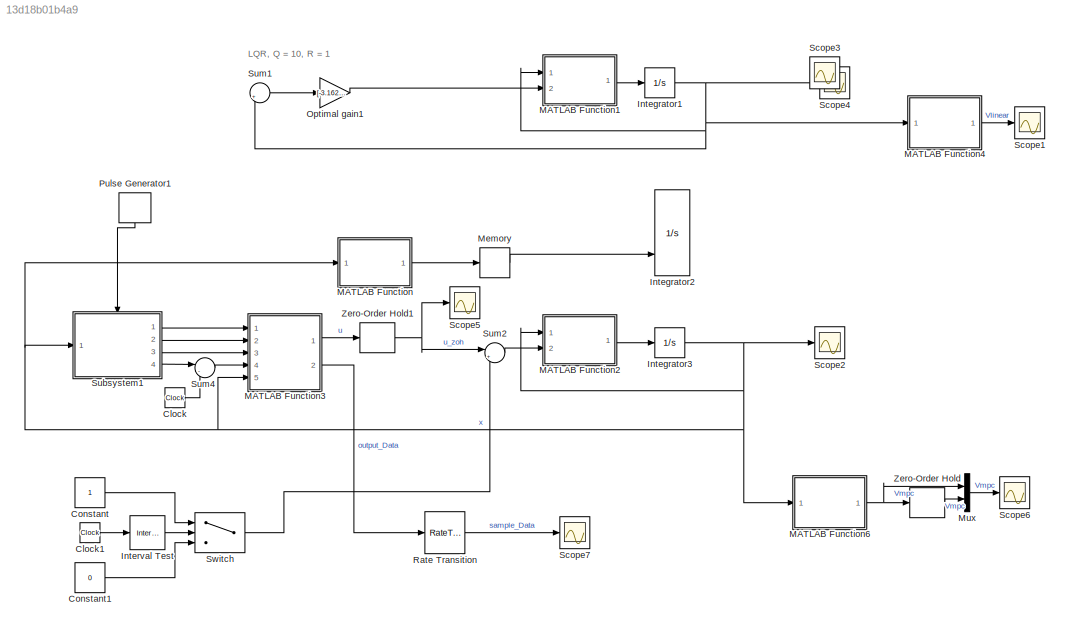
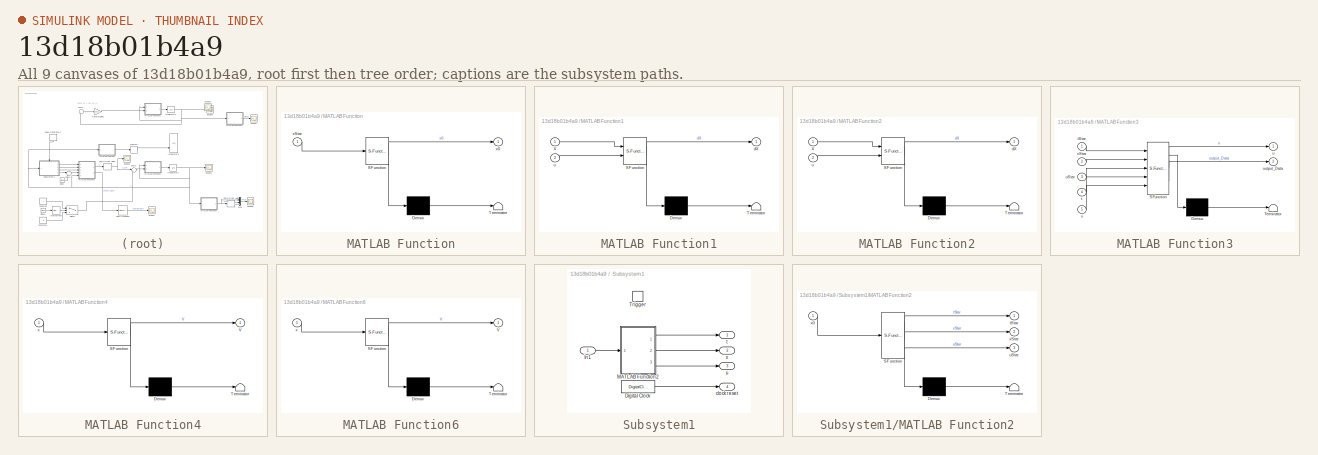
[diagram: thumbnail index - all 9 canvases of the model, root first then tree order]
MODEL slx_13d18b01b4a9
KIND model
CONFIG AbsTol = auto
CONFIG EnableMultiTasking = on
CONFIG FixedStep = auto
CONFIG MaxStep = 1e-3
CONFIG MinStep = auto
CONFIG RelTol = 1e-3
CONFIG SampleTimeConstraint = Unconstrained
CONFIG Solver = ode45
CONFIG SolverName = ode45
CONFIG StartTime = 0.0
CONFIG StopTime = 20
BLOCK [Clock] Clock
BLOCK [Clock] Clock1
BLOCK [Constant] Constant
BLOCK [Constant] Constant1
  Value = 0
BLOCK [Integrator] Integrator1
  InitialCondition = x0
  Ports = [1, 1]
BLOCK [Integrator] Integrator2
  ExternalReset = rising
  InitialCondition = x0
  InitialConditionSource = external
  Ports = [3, 1]
BLOCK [Integrator] Integrator3
  InitialCondition = x0
  Ports = [1, 1]
BLOCK [Reference] Interval Test  REF=simulink/Logic and Bit
Operations/Interval Test
  Ports = [1, 1]
  SourceBlock = simulink/Logic and Bit\nOperations/Interval Test
  SourceProductBaseCode = SL
  SourceProductName = Simulink
  SourceType = Interval Test
BLOCK [SubSystem] MATLAB Function
  ErrorFcn = Stateflow.Translate.translate
  PermitHierarchicalResolution = ExplicitOnly
  Ports = [1, 1]
  RequestExecContextInheritance = off
  SFBlockType = MATLAB Function
  TreatAsAtomicUnit = on
  Variant = off
BLOCK [Demux] MATLAB Function/ Demux 
  Outputs = 1
  Ports = [1, 1]
BLOCK [S-Function] MATLAB Function/ SFunction 
  EnableBusSupport = off
  FunctionName = sf_sfun
  PortCounts = [1 2]
  Ports = [1, 2]
  SFcnIsStateOwnerBlock = off
  SFunctionDeploymentMode = off
  Tag = Stateflow S-Function nonlinearSim 6
BLOCK [Terminator] MATLAB Function/ Terminator 
BLOCK [Outport] MATLAB Function/x0
  IconDisplay = Port number
BLOCK [Inport] MATLAB Function/xStar
  IconDisplay = Port number
BLOCK [SubSystem] MATLAB Function1
  ErrorFcn = Stateflow.Translate.translate
  PermitHierarchicalResolution = ExplicitOnly
  Ports = [2, 1]
  RequestExecContextInheritance = off
  SFBlockType = MATLAB Function
  TreatAsAtomicUnit = on
  Variant = off
BLOCK [Demux] MATLAB Function1/ Demux 
  Outputs = 1
  Ports = [1, 1]
BLOCK [S-Function] MATLAB Function1/ SFunction 
  EnableBusSupport = off
  FunctionName = sf_sfun
  PortCounts = [2 2]
  Ports = [2, 2]
  SFcnIsStateOwnerBlock = off
  SFunctionDeploymentMode = off
  Tag = Stateflow S-Function nonlinearSim 1
BLOCK [Terminator] MATLAB Function1/ Terminator 
BLOCK [Inport] MATLAB Function1/X
  IconDisplay = Port number
BLOCK [Outport] MATLAB Function1/dX
  IconDisplay = Port number
BLOCK [Inport] MATLAB Function1/u
  IconDisplay = Port number
  Port = 2
BLOCK [SubSystem] MATLAB Function2
  ErrorFcn = Stateflow.Translate.translate
  PermitHierarchicalResolution = ExplicitOnly
  Ports = [2, 1]
  RequestExecContextInheritance = off
  SFBlockType = MATLAB Function
  TreatAsAtomicUnit = on
  Variant = off
BLOCK [Demux] MATLAB Function2/ Demux 
  Outputs = 1
  Ports = [1, 1]
BLOCK [S-Function] MATLAB Function2/ SFunction 
  EnableBusSupport = off
  FunctionName = sf_sfun
  PortCounts = [2 2]
  Ports = [2, 2]
  SFcnIsStateOwnerBlock = off
  SFunctionDeploymentMode = off
  Tag = Stateflow S-Function nonlinearSim 3
BLOCK [Terminator] MATLAB Function2/ Terminator 
BLOCK [Inport] MATLAB Function2/X
  IconDisplay = Port number
BLOCK [Outport] MATLAB Function2/dX
  IconDisplay = Port number
BLOCK [Inport] MATLAB Function2/u
  IconDisplay = Port number
  Port = 2
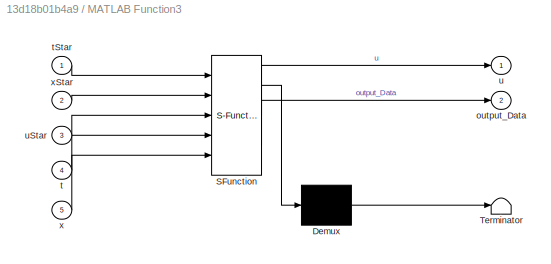
BLOCK [SubSystem] MATLAB Function3
  ErrorFcn = Stateflow.Translate.translate
  PermitHierarchicalResolution = ExplicitOnly
  Ports = [5, 2]
  RequestExecContextInheritance = off
  SFBlockType = MATLAB Function
  TreatAsAtomicUnit = on
  Variant = off
BLOCK [Demux] MATLAB Function3/ Demux 
  Outputs = 1
  Ports = [1, 1]
BLOCK [S-Function] MATLAB Function3/ SFunction 
  EnableBusSupport = off
  FunctionName = sf_sfun
  PortCounts = [5 3]
  Ports = [5, 3]
  SFcnIsStateOwnerBlock = off
  SFunctionDeploymentMode = off
  Tag = Stateflow S-Function nonlinearSim 4
BLOCK [Terminator] MATLAB Function3/ Terminator 
BLOCK [Outport] MATLAB Function3/output_Data
  IconDisplay = Port number
  Port = 2
BLOCK [Inport] MATLAB Function3/t
  IconDisplay = Port number
  Port = 4
BLOCK [Inport] MATLAB Function3/tStar
  IconDisplay = Port number
BLOCK [Outport] MATLAB Function3/u
  IconDisplay = Port number
BLOCK [Inport] MATLAB Function3/uStar
  IconDisplay = Port number
  Port = 3
BLOCK [Inport] MATLAB Function3/x
  IconDisplay = Port number
  Port = 5
BLOCK [Inport] MATLAB Function3/xStar
  IconDisplay = Port number
  Port = 2
BLOCK [SubSystem] MATLAB Function4
  ErrorFcn = Stateflow.Translate.translate
  PermitHierarchicalResolution = ExplicitOnly
  Ports = [1, 1]
  RequestExecContextInheritance = off
  SFBlockType = MATLAB Function
  TreatAsAtomicUnit = on
  Variant = off
BLOCK [Demux] MATLAB Function4/ Demux 
  Outputs = 1
  Ports = [1, 1]
BLOCK [S-Function] MATLAB Function4/ SFunction 
  EnableBusSupport = off
  FunctionName = sf_sfun
  PortCounts = [1 2]
  Ports = [1, 2]
  SFcnIsStateOwnerBlock = off
  SFunctionDeploymentMode = off
  Tag = Stateflow S-Function nonlinearSim 2
BLOCK [Terminator] MATLAB Function4/ Terminator 
BLOCK [Outport] MATLAB Function4/V
  IconDisplay = Port number
BLOCK [Inport] MATLAB Function4/x
  IconDisplay = Port number
BLOCK [SubSystem] MATLAB Function6
  ErrorFcn = Stateflow.Translate.translate
  PermitHierarchicalResolution = ExplicitOnly
  Ports = [1, 1]
  RequestExecContextInheritance = off
  SFBlockType = MATLAB Function
  TreatAsAtomicUnit = on
  Variant = off
BLOCK [Demux] MATLAB Function6/ Demux 
  Outputs = 1
  Ports = [1, 1]
BLOCK [S-Function] MATLAB Function6/ SFunction 
  EnableBusSupport = off
  FunctionName = sf_sfun
  PortCounts = [1 2]
  Ports = [1, 2]
  SFcnIsStateOwnerBlock = off
  SFunctionDeploymentMode = off
  Tag = Stateflow S-Function nonlinearSim 8
BLOCK [Terminator] MATLAB Function6/ Terminator 
BLOCK [Outport] MATLAB Function6/V
  IconDisplay = Port number
BLOCK [Inport] MATLAB Function6/x
  IconDisplay = Port number
BLOCK [Memory] Memory
  X0 = x0
BLOCK [Mux] Mux
  DisplayOption = bar
  Inputs = 2
  Ports = [2, 1]
BLOCK [Gain] Optimal gain1
  Gain = [-3.1623   64.3424   -6.3324   14.9763]
  Multiplication = Matrix(K*u)
  OutDataTypeStr = Inherit: Inherit via internal rule
  ParamDataTypeStr = Inherit: Inherit via internal rule
  SaturateOnIntegerOverflow = off
BLOCK [DiscretePulseGenerator] Pulse Generator1
  Period = Taction
  Ports = [0, 1]
  PulseType = Time based
  PulseWidth = 50
BLOCK [RateTransition] Rate Transition
  OutPortSampleTime = 2
BLOCK [Scope] Scope1
  NumInputPorts = 1
  Ports = [1]
  ScopeSpecificationString = Simulink.scopes.TimeScopeBlockCfg('CurrentConfiguration', extmgr.ConfigurationSet(extmgr.Configuration('Core','General UI',true),extmgr.Configuration('Core','Source UI',true),extmgr.Configuration('Sources','WiredSimulink',true,'DataLoggingVariableName','ScopeData4'),extmgr.Configuration('Visuals','Time Domain',true,'SerializedDisplays',{struct('MinYLimReal','-8.28158','MaxYLimReal','74.67011','YLa...<+1443ch>
BLOCK [Scope] Scope2
  NumInputPorts = 1
  Ports = [1]
  ScopeSpecificationString = Simulink.scopes.TimeScopeBlockCfg('CurrentConfiguration', extmgr.ConfigurationSet(extmgr.Configuration('Core','General UI',true),extmgr.Configuration('Core','Source UI',true),extmgr.Configuration('Sources','WiredSimulink',true,'DataLoggingVariableName','ScopeData2'),extmgr.Configuration('Visuals','Time Domain',true,'SerializedDisplays',{struct('MinYLimReal','-2.08317','MaxYLimReal','1.73214','YLab...<+1432ch>
BLOCK [Scope] Scope3
  IOType = viewer
  NumInputPorts = 1
  Ports = []
  ScopeSpecificationString = Simulink.scopes.TimeScopeBlockCfg('CurrentConfiguration', extmgr.ConfigurationSet(extmgr.Configuration('Core','General UI',true),extmgr.Configuration('Core','Source UI',true),extmgr.Configuration('Sources','WiredSimulink',true,'DataLoggingVariableName','ScopeData3'),extmgr.Configuration('Visuals','Time Domain',true,'SerializedDisplays',{struct('MinYLimReal','-11.4016','MaxYLimReal','3.16282','YLab...<+1388ch>
BLOCK [Scope] Scope4
  NumInputPorts = 1
  Ports = [1]
  ScopeSpecificationString = Simulink.scopes.TimeScopeBlockCfg('CurrentConfiguration', extmgr.ConfigurationSet(extmgr.Configuration('Core','General UI',true),extmgr.Configuration('Core','Source UI',true),extmgr.Configuration('Sources','WiredSimulink',true,'DataLoggingVariableName','ScopeData3'),extmgr.Configuration('Visuals','Time Domain',true,'SerializedDisplays',{struct('MinYLimReal','-1.82561','MaxYLimReal','0.5907','YLabe...<+1437ch>
BLOCK [Scope] Scope5
  NumInputPorts = 1
  Ports = [1]
  ScopeSpecificationString = Simulink.scopes.TimeScopeBlockCfg('CurrentConfiguration', extmgr.ConfigurationSet(extmgr.Configuration('Core','General UI',true),extmgr.Configuration('Core','Source UI',true),extmgr.Configuration('Sources','WiredSimulink',true,'DataLoggingVariableName','ScopeData1'),extmgr.Configuration('Visuals','Time Domain',true,'SerializedDisplays',{struct('MinYLimReal','-31.03092','MaxYLimReal','6.69784','YLa...<+1436ch>
BLOCK [Scope] Scope6
  NumInputPorts = 1
  Ports = [1]
  ScopeSpecificationString = Simulink.scopes.TimeScopeBlockCfg('CurrentConfiguration', extmgr.ConfigurationSet(extmgr.Configuration('Core','General UI',true),extmgr.Configuration('Core','Source UI',true),extmgr.Configuration('Sources','WiredSimulink',true,'DataLoggingVariableName','ScopeData1'),extmgr.Configuration('Visuals','Time Domain',true,'SerializedDisplays',{struct('MinYLimReal','-1.84774','MaxYLimReal','16.62969','YLa...<+1436ch>
BLOCK [Scope] Scope7
  NumInputPorts = 1
  Ports = [1]
  ScopeSpecificationString = Simulink.scopes.TimeScopeBlockCfg('CurrentConfiguration', extmgr.ConfigurationSet(extmgr.Configuration('Core','General UI',true),extmgr.Configuration('Core','Source UI',true),extmgr.Configuration('Sources','WiredSimulink',true,'DataLoggingVariableName','ScopeData1'),extmgr.Configuration('Visuals','Time Domain',true,'SerializedDisplays',{struct('MinYLimReal','-0.02025','MaxYLimReal','0.18228','YLab...<+1459ch>
BLOCK [SubSystem] Subsystem1
  Ports = [1, 4, 0, 1]
  RequestExecContextInheritance = off
  Variant = off
BLOCK [DigitalClock] Subsystem1/Digital Clock
  SampleTime = -1
BLOCK [Inport] Subsystem1/In1
  IconDisplay = Port number
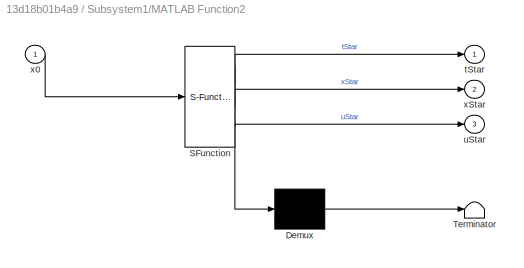
BLOCK [SubSystem] Subsystem1/MATLAB Function2
  ErrorFcn = Stateflow.Translate.translate
  PermitHierarchicalResolution = ExplicitOnly
  Ports = [1, 3]
  RequestExecContextInheritance = off
  SFBlockType = MATLAB Function
  TreatAsAtomicUnit = on
  Variant = off
BLOCK [Demux] Subsystem1/MATLAB Function2/ Demux 
  Outputs = 1
  Ports = [1, 1]
BLOCK [S-Function] Subsystem1/MATLAB Function2/ SFunction 
  EnableBusSupport = off
  FunctionName = sf_sfun
  PortCounts = [1 4]
  Ports = [1, 4]
  SFcnIsStateOwnerBlock = off
  SFunctionDeploymentMode = off
  Tag = Stateflow S-Function nonlinearSim 5
BLOCK [Terminator] Subsystem1/MATLAB Function2/ Terminator 
BLOCK [Outport] Subsystem1/MATLAB Function2/tStar
  IconDisplay = Port number
BLOCK [Outport] Subsystem1/MATLAB Function2/uStar
  IconDisplay = Port number
  Port = 3
BLOCK [Inport] Subsystem1/MATLAB Function2/x0 
  IconDisplay = Port number
BLOCK [Outport] Subsystem1/MATLAB Function2/xStar
  IconDisplay = Port number
  Port = 2
BLOCK [TriggerPort] Subsystem1/Trigger
  PortDimensions = 1
  Ports = []
  StatesWhenEnabling = held
  VariantControl = Variant
BLOCK [Outport] Subsystem1/clock reset
  IconDisplay = Port number
  InitialOutput = 0
  Port = 4
BLOCK [Outport] Subsystem1/t
  IconDisplay = Port number
  InitialOutput = tStar
BLOCK [Outport] Subsystem1/u
  IconDisplay = Port number
  InitialOutput = uStar
  Port = 3
BLOCK [Outport] Subsystem1/x
  IconDisplay = Port number
  InitialOutput = xStar
  Port = 2
BLOCK [Sum] Sum1
  IconShape = round
  InputSameDT = off
  Inputs = |+-
  OutDataTypeStr = Inherit: Inherit via internal rule
  Ports = [2, 1]
  SaturateOnIntegerOverflow = off
BLOCK [Sum] Sum2
  IconShape = round
  InputSameDT = off
  Inputs = |++
  OutDataTypeStr = Inherit: Inherit via internal rule
  Ports = [2, 1]
  SaturateOnIntegerOverflow = off
BLOCK [Sum] Sum4
  IconShape = round
  InputSameDT = off
  Inputs = |-+
  OutDataTypeStr = Inherit: Inherit via internal rule
  Ports = [2, 1]
  SaturateOnIntegerOverflow = off
BLOCK [Switch] Switch
  Criteria = u2 > Threshold
  InputSameDT = off
  SaturateOnIntegerOverflow = off
BLOCK [ZeroOrderHold] Zero-Order Hold
  SampleTime = Taction
BLOCK [ZeroOrderHold] Zero-Order Hold1
  SampleTime = Taction
ANNOTATION (root): LQR, Q = 10, R = 1
LINE Clock1:1 -> Interval Test:1
LINE Clock:1 -> Sum4:2
LINE Constant1:1 -> Switch:3
LINE Constant:1 -> Switch:1
NET Integrator1:1 -> MATLAB Function1:1, MATLAB Function4:1, Scope4:1, Sum1:2
NET Integrator3:1 -> MATLAB Function2:1, MATLAB Function3:5, MATLAB Function6:1, MATLAB Function:1, Scope2:1, Subsystem1:1
LINE Interval Test:1 -> Switch:2
LINE MATLAB Function1:1 -> Integrator1:1
LINE MATLAB Function2:1 -> Integrator3:1
LINE MATLAB Function3:1 -> Zero-Order Hold1:1
LINE MATLAB Function3:2 -> Rate Transition:1
LINE MATLAB Function4:1 -> Scope1:1
NET MATLAB Function6:1 -> Mux:1, Zero-Order Hold:1
LINE MATLAB Function:1 -> Memory:1
LINE Memory:1 -> Integrator2:3
LINE Mux:1 -> Scope6:1
LINE Optimal gain1:1 -> MATLAB Function1:2
LINE Pulse Generator1:1 -> Subsystem1:trigger
LINE Rate Transition:1 -> Scope7:1
LINE Subsystem1/Digital Clock:1 -> Subsystem1/clock reset:1
LINE Subsystem1/In1:1 -> Subsystem1/MATLAB Function2:1
LINE Subsystem1/MATLAB Function2:1 -> Subsystem1/t:1
LINE Subsystem1/MATLAB Function2:2 -> Subsystem1/x:1
LINE Subsystem1/MATLAB Function2:3 -> Subsystem1/u:1
LINE Subsystem1:1 -> MATLAB Function3:1
LINE Subsystem1:2 -> MATLAB Function3:2
LINE Subsystem1:3 -> MATLAB Function3:3
LINE Subsystem1:4 -> Sum4:1
LINE Sum1:1 -> Optimal gain1:1
LINE Sum2:1 -> MATLAB Function2:2
LINE Sum4:1 -> MATLAB Function3:4
LINE Switch:1 -> Sum2:2
NET Zero-Order Hold1:1 -> Scope5:1, Sum2:1
LINE Zero-Order Hold:1 -> Mux:2
note: NET lines group one-source signal fan-out (src -> all destinations, sorted); 1:1 wires keep LINE
CHART MATLAB Function1 states=1 transitions=1
  STATE_LABEL 'eML_blk_kernel()'
  STATE_LABEL "SCRIPT:\nfunction dX = fcn(X, u)\n%#codegen\n\nx = X(1:2) + [0 pi/2]';\nxdot = X(3:4);\n\nM = ([[2,-sin(x(2,:))/2];[-sin(x(2,:))/2,1/3]]);\nf = ([[u(:,1)+(xdot(2,:)^2*cos(x(2,:)))/2];[-(981*cos(x(2,:)))/200]]);\n\nxddot = M\\f;\n\ndX = [xdot; xddot];"
CHART MATLAB Function4 states=1 transitions=1
  STATE_LABEL 'eML_blk_kernel()'
  STATE_LABEL "SCRIPT:\nfunction V = LyapunovFunction(x)\n\t%#codegen\n\t\n\t\n\tx = reshape(x, 4, 1);\n\tP = [\n\t\t17.8236  -33.7375   10.7063   -8.4552\n\t\t-33.7375  183.9190  -48.9624   41.6848\n\t\t10.7063  -48.9624   14.9440  -12.0628\n\t\t-8.4552   41.6848  -12.0628   10.6193\n\t\t];\t% Q = 10, R = 1\n\t\n\tV = x'* P* x;\n\t\n\t\n\t\n"
CHART MATLAB Function2 states=1 transitions=1
  STATE_LABEL 'eML_blk_kernel()'
  STATE_LABEL "SCRIPT:\nfunction dX = fcn(X, u)\n%#codegen\n\nx = X(1:2) + [0 pi/2]';\nxdot = X(3:4);\n\nM = ([[2,-sin(x(2,:))/2];[-sin(x(2,:))/2,1/3]]);\nf = ([[u(:,1)+(xdot(2,:)^2*cos(x(2,:)))/2];[-(981*cos(x(2,:)))/200]]);\n\nxddot = M\\f;\n\ndX = [xdot; xddot];\n"
CHART MATLAB Function3 states=1 transitions=1
  STATE_LABEL 'eML_blk_kernel()'
  STATE_LABEL "SCRIPT:\nfunction [u, output_Data] = interp_u(tStar, xStar, uStar, t, x)\n%#codegen\n\n\nu = interp1(tStar, uStar, t,'linear');\t% better for the accuracy\n% u = interp1(tStar, uStar, t,'spline');\n\n% P = [\n% \t17.8236  -33.7375   10.7063   -8.4552\n% \t-33.7375  183.9190  -48.9624   41.6848\n% \t10.7063  -48.9624   14.9440  -12.0628\n% \t-8.4552   41.6848  -12.0628   10.6193\n% \t];\t% Q = 10, R = 1\n\nP = [\n\t  0.04...<+232ch>"
CHART Subsystem1/MATLAB Function2 states=1 transitions=1
  STATE_LABEL 'eML_blk_kernel()'
  STATE_LABEL "SCRIPT:\nfunction [tStar, xStar, uStar] = fcn(x0)\n%#codegen\ncoder.extrinsic('funEquilibrium');\nnNodes = 120 + 1;\n% nNodes = 12000 + 1;\ntStar = zeros(nNodes,1);\nxStar = zeros(nNodes,4);\nuStar = zeros(nNodes,1);\n\n\nL = zeros(2);\n% L = [pi/15 pi/15; 0 0];\n% L = [0.1744 0.0437; 0.2531 0.0624];\nH = [1 0 0 0; L(1,1) 0 L(1,2) 0; 0 0 1 0; L(2,1) 0 L(2,2) 0];\n% x0 = H*x0;\n\n[~, ~, tStar, xStar, uStar] = funEq...<+27ch>"
CHART MATLAB Function states=1 transitions=1
  STATE_LABEL 'eML_blk_kernel()'
  STATE_LABEL 'SCRIPT:\nfunction x0 = fcn(xStar)\n%#codegen\n\n% H = eye(4);\n% H = [1 0 0 0; pi/6 0 0 0; 0 0 1 0; 0 0 pi/6 0];\n% H = [1 0 0 0; 0 0 0 0; 0 0 1 0; 0 0 0 0];\nH = [1 0 0 0; 0.1744 0 0.0437 0; 0 0 1 0; 0.2531 0 0.0624 0];\nx0 = H*xStar;\n\n\n'
CHART MATLAB Function6 states=1 transitions=1
  STATE_LABEL 'eML_blk_kernel()'
  STATE_LABEL "SCRIPT:\nfunction V = LyapunovFunction(x)\n\t%#codegen\n\t\n\t\n\tx = reshape(x, 4, 1);\n\tP = [\n\t\t17.8236  -33.7375   10.7063   -8.4552\n\t\t-33.7375  183.9190  -48.9624   41.6848\n\t\t10.7063  -48.9624   14.9440  -12.0628\n\t\t-8.4552   41.6848  -12.0628   10.6193\n\t\t];\t% Q = 10, R = 1\n\t\n\tV = x'* P* x;\n\t\n\t\n\t\n"
